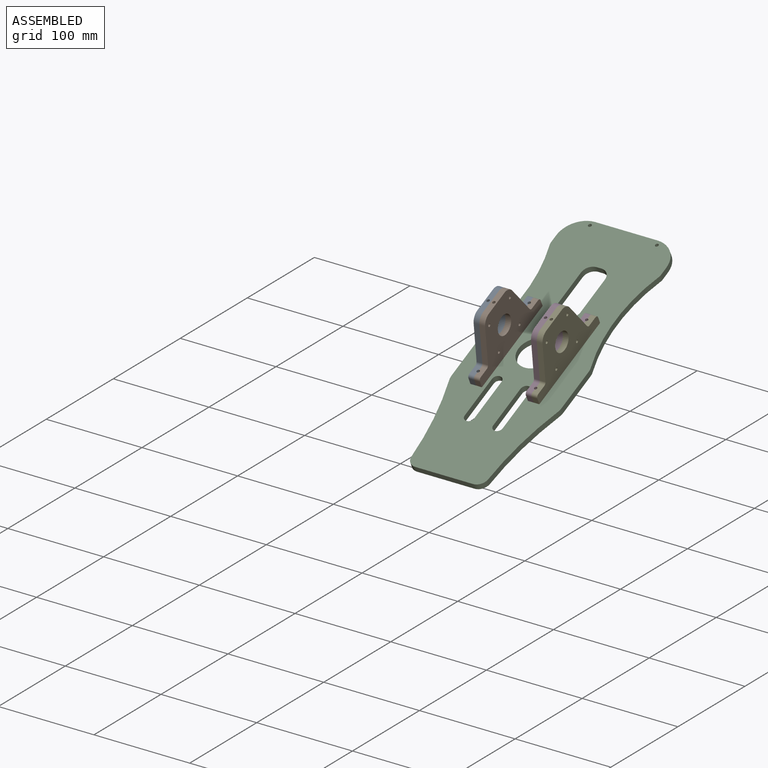
[diagram: assembled view]
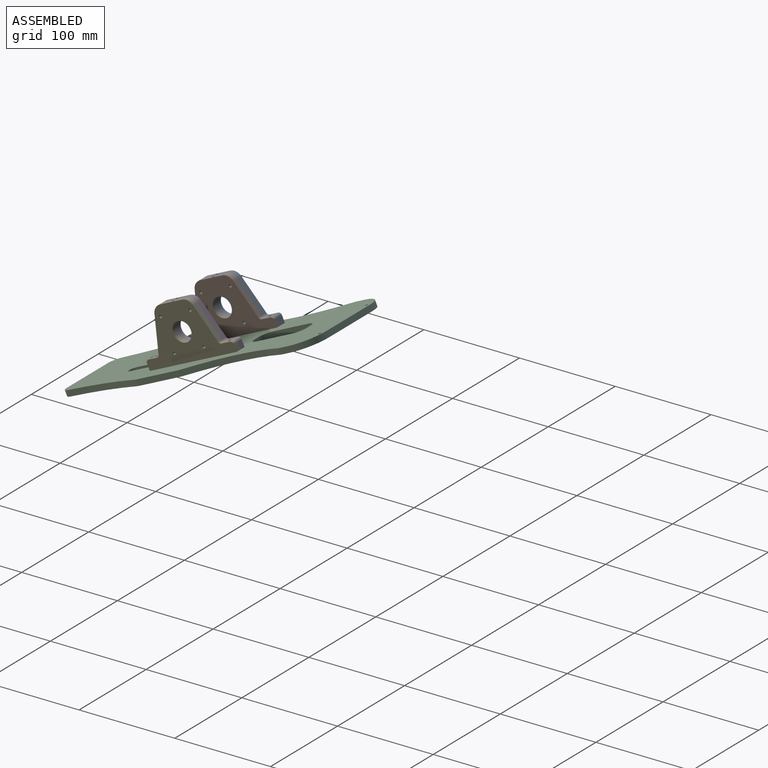
[diagram: assembled view, second angle]
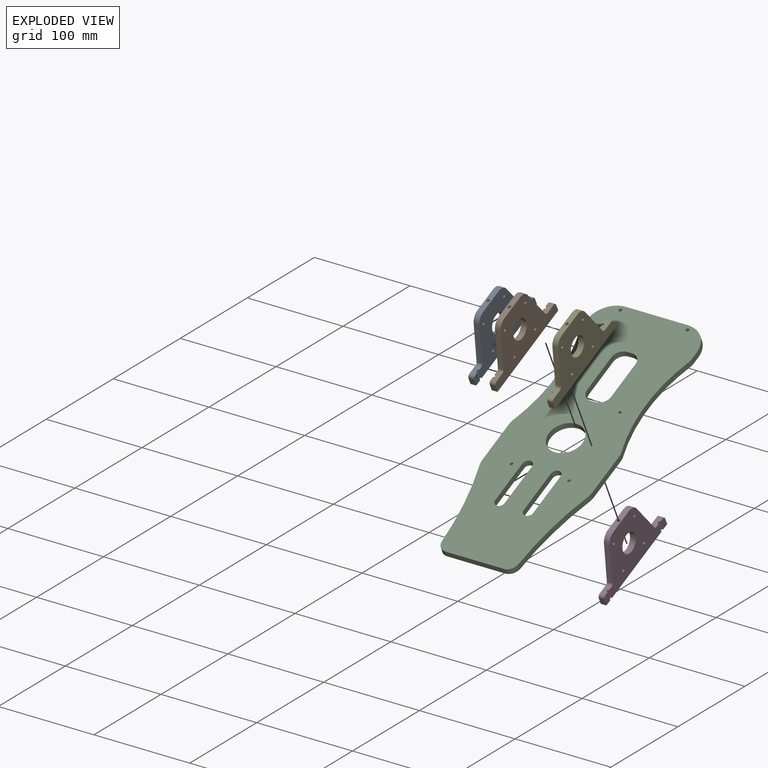
[diagram: exploded view]
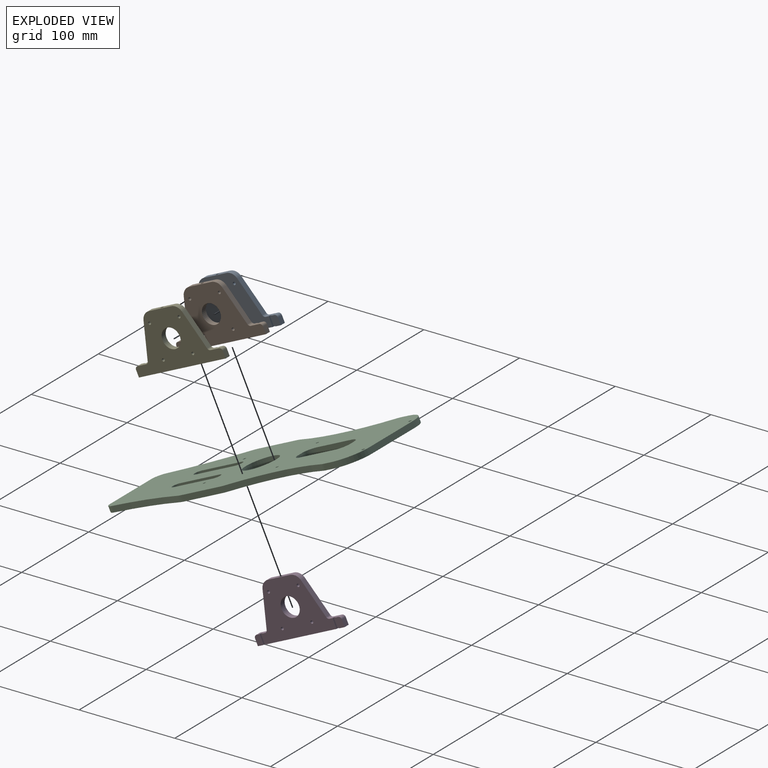
[diagram: exploded view, second angle]
ASSEMBLY  parts=5 mates=4
PART A: 26 faces, bbox 100x55x6 mm
  f0: plane 10x6.5mm, normal (0,0,1), area 63.1mm2, adj f4,f5,f11,f12,f13
  f1: plane 10x6.5mm, normal (0,0,1), area 63.1mm2, adj f2,f3,f6,f7,f13
  f2: plane 7x6mm, normal (-1,0,0), area 42mm2, adj f1,f3,f13,f19
  f3: cylinder r=3mm len=6mm, axis (0,0,1), area 28.3mm2, adj f1,f2,f7,f19
  f4: cylinder r=3mm len=6mm, axis (0,0,1), area 28.3mm2, adj f0,f5,f11,f19
  f5: plane 7x6mm, normal (1,0,0), area 42mm2, adj f0,f4,f13,f19
  f6: cylinder r=1.5mm len=10mm, axis (0,-1,0), area 47.1mm2, adj f1,f7,f13,f21
  f7: plane 9.84x6mm, normal (0,-1,0), area 55.5mm2, adj f1,f3,f6,f8,f19,f21
  f8: cylinder r=3mm len=6mm, axis (0,0,1), area 22.5mm2, adj f7,f18,f19,f21
  f9: plane 36.11x12.04mm, normal (0.95,-0.32,0), area 228.4mm2, adj f10,f19,f20,f21
  f10: cylinder r=3mm len=6mm, axis (0,0,1), area 22.5mm2, adj f9,f11,f19,f21
  f11: plane 9.84x6mm, normal (0,-1,0), area 55.5mm2, adj f0,f4,f10,f12,f19,f21
  f12: cylinder r=1.5mm len=10mm, axis (0,-1,0), area 47.1mm2, adj f0,f11,f13,f21
  f13: plane 100x6mm, normal (0,1,0), area 592.9mm2, adj f0,f1,f2,f5,f6,f12,f19,f21
  f14: cylinder r=1.5mm len=6mm, axis (0,0,-1), area 56.5mm2, adj f19,f21
  f15: cylinder r=1.5mm len=6mm, axis (0,0,-1), area 56.5mm2, adj f19,f21
  f16: cylinder r=1.5mm len=6mm, axis (0,0,-1), area 56.5mm2, adj f19,f21
  f17: cylinder r=1.5mm len=6mm, axis (0,0,-1), area 56.5mm2, adj f19,f21
  f18: plane 36.11x12.04mm, normal (-0.95,-0.32,0), area 228.4mm2, adj f8,f19,f21,f22
  f19: plane 100x55mm, normal (0,0,-1), area 3111.2mm2, adj f2,f3,f4,f5,f7,f8,f9,f10
  f20: cylinder r=10mm len=9.49mm, axis (0,0,1), area 74.9mm2, adj f9,f19,f21,f24
  f21: plane 81x55mm, normal (0,0,1), area 2925.1mm2, adj f6,f7,f8,f9,f10,f11,f12,f13
  f22: cylinder r=10mm len=9.49mm, axis (0,0,1), area 74.9mm2, adj f18,f19,f21,f24
  f23: cylinder r=10mm len=20mm, axis (0,0,-1), area 369.9mm2, adj f19,f21,f25
  f24: plane 25.59x6mm, normal (0,-1,0), area 146.4mm2, adj f19,f20,f21,f22,f25
  f25: cylinder r=1.5mm len=17.61mm, axis (0,1,0), area 165.5mm2, adj f23,f24
PART B: same geometry as A
PART C: 53 faces, bbox 115x300x6 mm
  f0: cylinder r=1.5mm len=3.5mm, axis (0,0,-1), area 33mm2, adj f3,f6
  f1: cylinder r=1.5mm len=3.5mm, axis (0,0,-1), area 33mm2, adj f4,f6
  f2: cylinder r=1.5mm len=3.5mm, axis (0,0,-1), area 33mm2, adj f5,f6
  f3: plane 6x6mm, normal (0,0,1), area 21.2mm2, adj f0,f8
  f4: plane 6x6mm, normal (0,0,1), area 21.2mm2, adj f1,f9
  f5: plane 6x6mm, normal (0,0,1), area 21.2mm2, adj f2,f10
  f6: plane 300x115mm, normal (0,0,-1), area 26851.8mm2, adj f0,f1,f2,f7,f11,f12,f13,f14
  f7: cylinder r=1.5mm len=3.5mm, axis (0,0,-1), area 33mm2, adj f6,f50
  f8: cylinder r=3mm len=6mm, axis (0,0,-1), area 47.1mm2, adj f3,f51
  f9: cylinder r=3mm len=6mm, axis (0,0,-1), area 47.1mm2, adj f4,f51
  f10: cylinder r=3mm len=6mm, axis (0,0,-1), area 47.1mm2, adj f5,f51
  f11: cylinder r=1.7mm len=6mm, axis (0,0,1), area 64.1mm2, adj f6,f51
  f12: cylinder r=1.7mm len=6mm, axis (0,0,1), area 64.1mm2, adj f6,f51
  f13: cylinder r=17.5mm len=35mm, axis (0,0,-1), area 659.7mm2, adj f6,f51
  f14: cylinder r=5mm len=10mm, axis (0,0,-1), area 94.2mm2, adj f6,f15,f17,f51
  f15: plane 45x6mm, normal (-1,0,0), area 270mm2, adj f6,f14,f16,f51
  f16: cylinder r=5mm len=10mm, axis (0,0,-1), area 94.2mm2, adj f6,f15,f17,f51
  f17: plane 45x6mm, normal (1,0,0), area 270mm2, adj f6,f14,f16,f51
  f18: cylinder r=5mm len=10mm, axis (0,0,-1), area 94.2mm2, adj f6,f19,f21,f51
  f19: plane 45x6mm, normal (-1,0,0), area 270mm2, adj f6,f18,f20,f51
  f20: cylinder r=5mm len=10mm, axis (0,0,-1), area 94.2mm2, adj f6,f19,f21,f51
  f21: plane 45x6mm, normal (1,0,0), area 270mm2, adj f6,f18,f20,f51
  f22: cylinder r=10mm len=10mm, axis (0,0,-1), area 94.2mm2, adj f6,f23,f29,f51
  f23: plane 40x6mm, normal (1,0,0), area 240mm2, adj f6,f22,f24,f51
  f24: cylinder r=10mm len=10mm, axis (0,0,-1), area 94.2mm2, adj f6,f23,f25,f51
  f25: plane 6x5mm, normal (0,-1,0), area 30mm2, adj f6,f24,f26,f51
  f26: cylinder r=10mm len=10mm, axis (0,0,-1), area 94.2mm2, adj f6,f25,f27,f51
  f27: plane 40x6mm, normal (-1,0,0), area 240mm2, adj f6,f26,f28,f51
  f28: cylinder r=10mm len=10mm, axis (0,0,-1), area 94.2mm2, adj f6,f27,f29,f51
  f29: plane 6x5mm, normal (0,1,0), area 30mm2, adj f6,f22,f28,f51
  f30: plane 65x6mm, normal (0,-1,0), area 390mm2, adj f6,f31,f49,f51
  f31: cylinder r=25mm len=25mm, axis (0,0,1), area 235.6mm2, adj f6,f30,f32,f51
  f32: plane 8.28x6mm, normal (1,0,0), area 49.7mm2, adj f6,f31,f33,f51
  f33: cylinder r=10mm len=6mm, axis (0,0,1), area 20.1mm2, adj f6,f32,f34,f51
  f34: cylinder r=170mm len=111.11mm, axis (0,0,1), area 679.2mm2, adj f6,f33,f35,f51
  f35: cylinder r=15mm len=6mm, axis (0,0,1), area 29.8mm2, adj f6,f34,f36,f51
  f36: plane 44.13x6mm, normal (1,0,0), area 264.8mm2, adj f6,f35,f37,f51
  f37: cylinder r=20mm len=6.36mm, axis (0,0,1), area 38.9mm2, adj f6,f36,f38,f51
  f38: cylinder r=320mm len=87.4mm, axis (0,0,1), area 535.2mm2, adj f6,f37,f39,f51
  f39: cylinder r=10mm len=9.99mm, axis (0,0,1), area 91.5mm2, adj f6,f38,f40,f51
  f40: plane 60.33x6mm, normal (0,1,0), area 362mm2, adj f6,f39,f41,f51
  f41: cylinder r=10mm len=9.99mm, axis (0,0,1), area 91.5mm2, adj f6,f40,f42,f51
  f42: cylinder r=320mm len=87.4mm, axis (0,0,1), area 535.2mm2, adj f6,f41,f43,f51
  f43: cylinder r=20mm len=6.36mm, axis (0,0,1), area 38.9mm2, adj f6,f42,f44,f51
  f44: plane 44.13x6mm, normal (-1,0,0), area 264.8mm2, adj f6,f43,f45,f51
  f45: cylinder r=15mm len=6mm, axis (0,0,1), area 29.8mm2, adj f6,f44,f46,f51
  f46: cylinder r=170mm len=111.11mm, axis (0,0,1), area 679.2mm2, adj f6,f45,f47,f51
  f47: cylinder r=10mm len=6mm, axis (0,0,1), area 20.1mm2, adj f6,f46,f48,f51
  f48: plane 8.28x6mm, normal (-1,0,0), area 49.7mm2, adj f6,f47,f49,f51
  f49: cylinder r=25mm len=25mm, axis (0,0,1), area 235.6mm2, adj f6,f30,f48,f51
  f50: plane 6x6mm, normal (0,0,1), area 21.2mm2, adj f7,f52
  f51: plane 300x115mm, normal (0,0,1), area 26767mm2, adj f8,f9,f10,f11,f12,f13,f14,f15
  f52: cylinder r=3mm len=6mm, axis (0,0,-1), area 47.1mm2, adj f50,f51
PART D: same geometry as A
PART E: same geometry as A
PLACE A rot(axis=(-0.47,0.74,-0.47),106.8deg) t=(-250.86,-517.53,146.65)mm
PLACE B rot(axis=(-0.47,-0.74,0.47),106.8deg) t=(-238.86,-517.53,146.65)mm
PLACE C rot(axis=(-1,0,0),155deg) t=(-214.86,-505.91,121.72)mm
PLACE D rot(axis=(-0.47,0.74,-0.47),106.8deg) t=(-190.86,-517.53,146.65)mm
PLACE E rot(axis=(-0.47,-0.74,0.47),106.8deg) t=(-178.86,-517.53,146.65)mm
MATE fastened D.f6 <-> C.f1  axis (0,0.42,-0.91) through (-184.86,-467.85,139.47)mm
MATE fastened A.f12 <-> C.f7  axis (0,0.42,-0.91) through (-244.86,-543.98,103.98)mm
MATE fastened E.f23 <-> D.f23  axis (-1,0,0) through (-184.86,-517.53,146.65)mm
MATE fastened B.f23 <-> A.f23  axis (-1,0,0) through (-244.86,-517.53,146.65)mm
